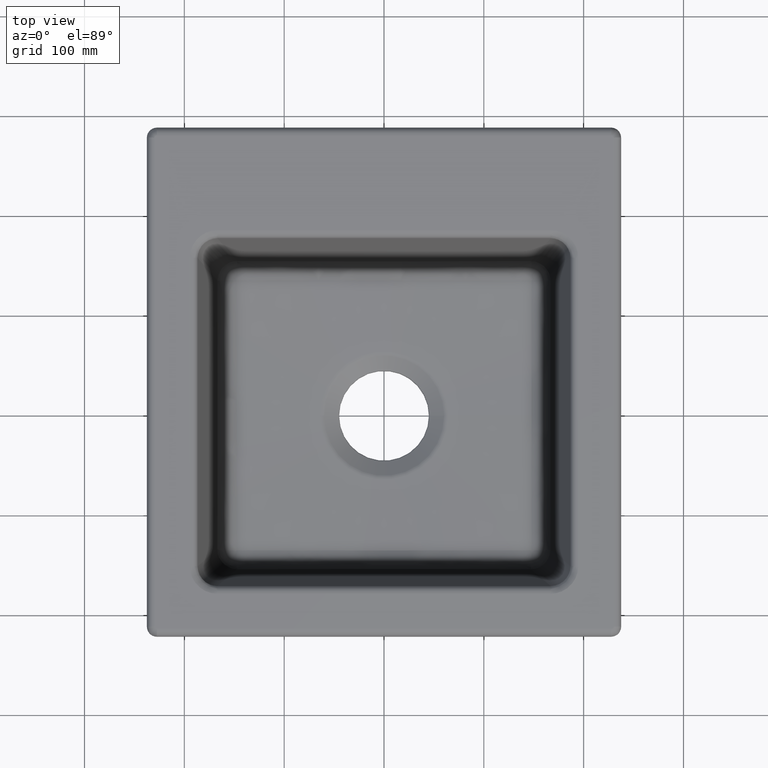
[diagram: clean part render]
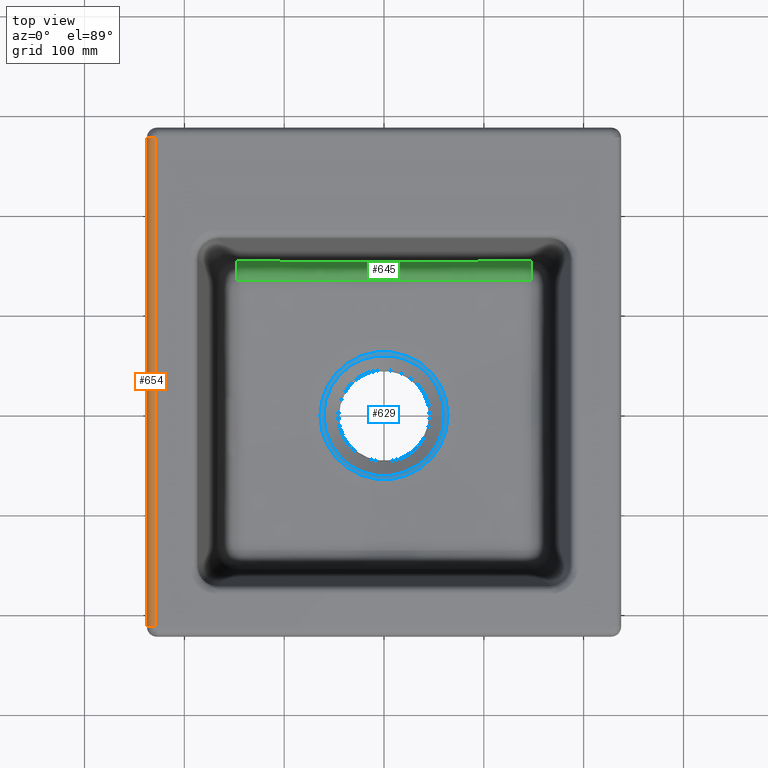
[diagram: same view with three faces highlighted in distinct colors, each labeled with its STEP entity id]
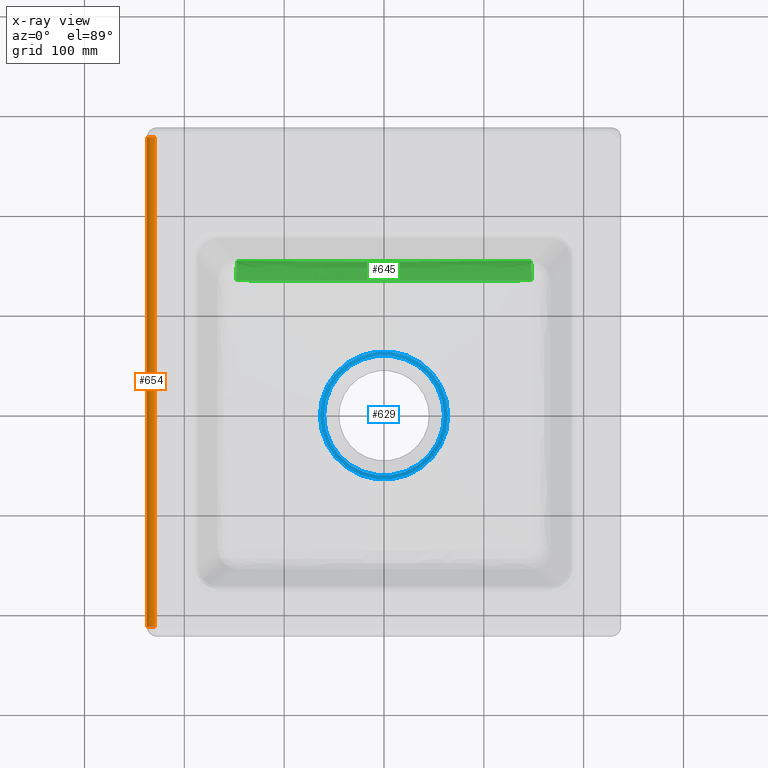
[diagram: x-ray of the same camera — body ghosted, the three highlighted faces saturated]
A machine part, top view with three faces highlighted in distinct colors.
The next image is the same camera in x-ray (body ghosted, the three faces saturated) — at least one of them is partly hidden behind the body in this view.
Their STEP definitions:

[orange] entity #654 — the highlighted cylindrical surface (edge-blend (fillet) strip) has radius 8 mm, axis along (0, 1, 0).
#189=CYLINDRICAL_SURFACE('',#3599,8.);
#276=FACE_OUTER_BOUND('',#993,.T.);
#654=ADVANCED_FACE('',(#276),#189,.T.);
#993=EDGE_LOOP('',(#1566,#1567,#1568,#1569));
#1235=CIRCLE('',#3597,8.);
#1236=CIRCLE('',#3598,7.99999999999898);
#1566=ORIENTED_EDGE('',*,*,#2839,.T.);
#1567=ORIENTED_EDGE('',*,*,#2874,.F.);
#1568=ORIENTED_EDGE('',*,*,#2875,.F.);
#1569=ORIENTED_EDGE('',*,*,#2872,.T.);
#2528=VERTEX_POINT('',#5383);
#2530=VERTEX_POINT('',#5391);
#2548=VERTEX_POINT('',#5987);
#2549=VERTEX_POINT('',#6076);
#2839=EDGE_CURVE('',#2528,#2530,#3287,.T.);
#2872=EDGE_CURVE('',#2548,#2528,#1235,.T.);
#2874=EDGE_CURVE('',#2549,#2530,#1236,.T.);
#2875=EDGE_CURVE('',#2548,#2549,#3293,.T.);
#3287=LINE('',#5392,#3422);
#3293=LINE('',#6077,#3428);
#3422=VECTOR('',#4019,1.);
#3428=VECTOR('',#4073,1.);
#3597=AXIS2_PLACEMENT_3D('',#5986,#4069,#4070);
#3598=AXIS2_PLACEMENT_3D('',#6075,#4071,#4072);
#3599=AXIS2_PLACEMENT_3D('',#6078,#4074,#4075);
#4019=DIRECTION('',(0.,-1.,0.));
#4069=DIRECTION('',(0.,-1.,0.));
#4070=DIRECTION('',(0.,0.,1.));
#4071=DIRECTION('',(-1.01446199031212E-14,-1.,1.30966479794646E-14));
#4072=DIRECTION('',(0.,-1.38777878078162E-14,-1.));
#4073=DIRECTION('',(0.,-1.,0.));
#4074=DIRECTION('',(0.,1.,0.));
#4075=DIRECTION('',(0.,0.,-1.));
#5383=CARTESIAN_POINT('',(-237.5,275.,-8.00000000000001));
#5391=CARTESIAN_POINT('',(-237.5,-215.,-8.00000000000001));
#5392=CARTESIAN_POINT('',(-237.5,30.,-8.00000000000001));
#5986=CARTESIAN_POINT('',(-229.5,275.,-8.00000000000001));
#5987=CARTESIAN_POINT('',(-229.5,275.,0.));
#6075=CARTESIAN_POINT('',(-229.5,-215.,-7.99999999999913));
#6076=CARTESIAN_POINT('',(-229.5,-215.,-1.73472347597681E-15));
#6077=CARTESIAN_POINT('',(-229.5,30.,0.));
#6078=CARTESIAN_POINT('',(-229.5,-215.,-8.00000000000001));

[blue] entity #629 — the highlighted toroidal blend (fillet) surface has major radius 64.5436 mm and minor (blend) radius 8 mm.
#61=TOROIDAL_SURFACE('',#3563,64.543621671717,8.);
#629=ADVANCED_FACE('',(#929,#930),#61,.T.);
#929=FACE_BOUND('',#964,.T.);
#930=FACE_BOUND('',#965,.T.);
#964=EDGE_LOOP('',(#1470,#1471));
#965=EDGE_LOOP('',(#1472,#1473));
#1209=CIRCLE('',#3556,60.1976114464591);
#1210=CIRCLE('',#3557,60.1976114464592);
#1213=CIRCLE('',#3561,64.1441207361659);
#1214=CIRCLE('',#3562,64.144120736166);
#1470=ORIENTED_EDGE('',*,*,#2811,.T.);
#1471=ORIENTED_EDGE('',*,*,#2810,.T.);
#1472=ORIENTED_EDGE('',*,*,#2814,.F.);
#1473=ORIENTED_EDGE('',*,*,#2815,.F.);
#2506=VERTEX_POINT('',#5141);
#2507=VERTEX_POINT('',#5142);
#2510=VERTEX_POINT('',#5150);
#2511=VERTEX_POINT('',#5151);
#2810=EDGE_CURVE('',#2506,#2507,#1209,.T.);
#2811=EDGE_CURVE('',#2507,#2506,#1210,.T.);
#2814=EDGE_CURVE('',#2510,#2511,#1213,.T.);
#2815=EDGE_CURVE('',#2511,#2510,#1214,.T.);
#3556=AXIS2_PLACEMENT_3D('',#5140,#3969,#3970);
#3557=AXIS2_PLACEMENT_3D('',#5143,#3971,#3972);
#3561=AXIS2_PLACEMENT_3D('',#5149,#3979,#3980);
#3562=AXIS2_PLACEMENT_3D('',#5152,#3981,#3982);
#3563=AXIS2_PLACEMENT_3D('',#5153,#3983,#3984);
#3969=DIRECTION('',(-9.81740284581459E-16,-4.90870142290729E-16,-1.));
#3970=DIRECTION('',(1.,0.,-9.22148734765507E-16));
#3971=DIRECTION('',(-9.81740284581459E-16,-4.90870142290729E-16,-1.));
#3972=DIRECTION('',(1.,0.,-9.22148734765505E-16));
#3979=DIRECTION('',(-4.32706463150249E-16,4.32706463150249E-16,-1.));
#3980=DIRECTION('',(0.,1.,4.32706463150249E-16));
#3981=DIRECTION('',(-4.32706463150254E-16,4.32706463150257E-16,-1.));
#3982=DIRECTION('',(0.,1.,4.32706463150248E-16));
#3983=DIRECTION('',(9.81740284581459E-16,4.90870142290729E-16,1.));
#3984=DIRECTION('',(-1.,0.,1.1478159613218E-15));
#5140=CARTESIAN_POINT('',(6.59391876006938E-15,-7.9969767466852E-14,-206.166251416998));
#5141=CARTESIAN_POINT('',(-60.1976114464591,-6.52256050320076E-14,-206.166251416998));
#5142=CARTESIAN_POINT('',(60.1976114464591,-6.06087389821551E-14,-206.166251416998));
#5143=CARTESIAN_POINT('',(6.59391876006946E-15,-7.9969767466852E-14,-206.166251416998));
#5149=CARTESIAN_POINT('',(-6.00500847866905E-30,1.37371219424636E-14,-204.892793963192));
#5150=CARTESIAN_POINT('',(-64.1441207361658,2.12267857830344E-14,-204.892793963192));
#5151=CARTESIAN_POINT('',(64.1441207361658,3.94163205002783E-14,-204.892793963192));
#5152=CARTESIAN_POINT('',(3.85155811348669E-14,4.15477459141055E-13,-204.892793963192));
#5153=CARTESIAN_POINT('',(0.,-8.32667268468867E-14,-212.882812674215));

[green] entity #645 — the highlighted face is a freeform B-spline surface patch.
#85=(
BOUNDED_SURFACE()
B_SPLINE_SURFACE(3,2,((#5620,#5621,#5622),(#5623,#5624,#5625),(#5626,#5627,
#5628),(#5629,#5630,#5631),(#5632,#5633,#5634),(#5635,#5636,#5637)),
 .UNSPECIFIED.,.F.,.F.,.F.)
B_SPLINE_SURFACE_WITH_KNOTS((4,2,4),(3,3),(0.,0.5,1.),(0.,1.),
 .UNSPECIFIED.)
GEOMETRIC_REPRESENTATION_ITEM()
RATIONAL_B_SPLINE_SURFACE(((1.,0.757151744441385,1.),(1.,0.75894754931409,
1.),(1.,0.762457015474614,1.),(1.,0.762455168656134,1.),(1.,0.758946727016128,
1.),(1.,0.757151744441386,1.)))
REPRESENTATION_ITEM('')
SURFACE()
);
#267=FACE_OUTER_BOUND('',#984,.T.);
#494=B_SPLINE_CURVE_WITH_KNOTS('',3,(#5157,#5158,#5159,#5160,#5161,#5162,
#5163,#5164,#5165,#5166,#5167,#5168,#5169,#5170,#5171,#5172,#5173,#5174,
#5175,#5176,#5177,#5178,#5179,#5180,#5181,#5182,#5183,#5184,#5185,#5186,
#5187,#5188,#5189,#5190,#5191,#5192,#5193,#5194,#5195,#5196,#5197,#5198,
#5199,#5200,#5201,#5202,#5203,#5204),.UNSPECIFIED.,.F.,.F.,(4,2,2,2,2,1,
2,2,2,2,2,2,2,2,2,2,2,2,2,2,1,2,2,2,4),(0.,0.125000000000004,0.187500000000007,
0.218750000000008,0.234375000000008,0.242187500000008,0.246093750000009,
0.250000000000009,0.312500000000008,0.343750000000008,0.359375000000008,
0.375000000000008,0.500000000000007,0.562500000000007,0.593750000000007,
0.609375000000007,0.625000000000007,0.687500000000007,0.718750000000007,
0.734375000000007,0.742187500000006,0.746093750000006,0.750000000000006,
0.875000000000003,1.),.UNSPECIFIED.);
#502=B_SPLINE_CURVE_WITH_KNOTS('',3,(#5612,#5613,#5614,#5615,#5616,#5617),
 .UNSPECIFIED.,.F.,.F.,(4,2,4),(0.,0.5,1.),.UNSPECIFIED.);
#645=ADVANCED_FACE('',(#267),#85,.T.);
#984=EDGE_LOOP('',(#1532,#1533,#1534,#1535));
#1226=CIRCLE('',#3586,19.99);
#1227=CIRCLE('',#3587,19.99);
#1532=ORIENTED_EDGE('',*,*,#2856,.T.);
#1533=ORIENTED_EDGE('',*,*,#2857,.F.);
#1534=ORIENTED_EDGE('',*,*,#2817,.F.);
#1535=ORIENTED_EDGE('',*,*,#2855,.T.);
#2513=VERTEX_POINT('',#5205);
#2514=VERTEX_POINT('',#5206);
#2539=VERTEX_POINT('',#5544);
#2540=VERTEX_POINT('',#5618);
#2817=EDGE_CURVE('',#2513,#2514,#494,.T.);
#2855=EDGE_CURVE('',#2513,#2539,#1226,.T.);
#2856=EDGE_CURVE('',#2539,#2540,#502,.T.);
#2857=EDGE_CURVE('',#2514,#2540,#1227,.T.);
#3586=AXIS2_PLACEMENT_3D('',#5545,#4045,#4046);
#3587=AXIS2_PLACEMENT_3D('',#5619,#4047,#4048);
#4045=DIRECTION('',(0.999306238617373,0.00421602791559831,0.0370036021086254));
#4046=DIRECTION('',(0.0370039309805143,0.,-0.999315120015699));
#4047=DIRECTION('',(0.999306238617373,-0.00421602791559847,-0.0370036021086268));
#4048=DIRECTION('',(-0.0370039309805156,0.,-0.999315120015699));
#5157=CARTESIAN_POINT('',(147.813322408069,135.260774200895,-198.081984313404));
#5158=CARTESIAN_POINT('',(134.283123572174,135.237342578409,-198.581862004965));
#5159=CARTESIAN_POINT('',(121.43825064969,135.240766439261,-199.024409404381));
#5160=CARTESIAN_POINT('',(103.058961261054,135.227023923054,-199.602235065289));
#5161=CARTESIAN_POINT('',(97.0791886978778,135.220993094899,-199.780511045888));
#5162=CARTESIAN_POINT('',(88.2970484461973,135.212983439906,-200.026426157233));
#5163=CARTESIAN_POINT('',(85.4008018288385,135.210534248517,-200.104814717756));
#5164=CARTESIAN_POINT('',(81.0979235870714,135.207824996629,-200.217022843651));
#5165=CARTESIAN_POINT('',(79.6705377399262,135.207083192648,-200.253529766468));
#5166=CARTESIAN_POINT('',(77.5390910945031,135.206289196385,-200.306946471972));
#5167=CARTESIAN_POINT('',(76.4757749854655,135.205971792813,-200.333318905043));
#5168=CARTESIAN_POINT('',(75.4159256973017,135.205787072815,-200.359187458593));
#5169=CARTESIAN_POINT('',(74.7101133894607,135.205694782569,-200.376321187733));
#5170=CARTESIAN_POINT('',(74.4024470896904,135.205665932387,-200.383754969376));
#5171=CARTESIAN_POINT('',(67.6530482982274,135.205385769015,-200.545798759545));
#5172=CARTESIAN_POINT('',(61.4327358593441,135.202987890439,-200.680182014994));
#5173=CARTESIAN_POINT('',(52.2159151123615,135.204002310276,-200.854564077575));
#5174=CARTESIAN_POINT('',(49.1623484624086,135.204996928247,-200.908159295003));
#5175=CARTESIAN_POINT('',(44.5974457560216,135.206928112357,-200.981753915996));
#5176=CARTESIAN_POINT('',(43.0783720852028,135.207631686078,-201.005152422136));
#5177=CARTESIAN_POINT('',(40.0430819644259,135.208884282391,-201.049683366032));
#5178=CARTESIAN_POINT('',(38.5813386716789,135.209424420776,-201.070097165269));
#5179=CARTESIAN_POINT('',(24.4473424618983,135.21188087769,-201.256559544044));
#5180=CARTESIAN_POINT('',(12.3856478955351,135.214214184403,-201.33938560004));
#5181=CARTESIAN_POINT('',(-6.22433946636451,135.214086947529,-201.339247375565));
#5182=CARTESIAN_POINT('',(-12.3381244108614,135.204823895542,-201.318477177235));
#5183=CARTESIAN_POINT('',(-21.5410506059442,135.203791872405,-201.25623569448));
#5184=CARTESIAN_POINT('',(-24.6140075968227,135.204994407956,-201.230307502685));
#5185=CARTESIAN_POINT('',(-29.2511650007848,135.207454590204,-201.183643668678));
#5186=CARTESIAN_POINT('',(-30.80149417704,135.208351375594,-201.166793799623));
#5187=CARTESIAN_POINT('',(-33.914522478946,135.20964659372,-201.130503546076));
#5188=CARTESIAN_POINT('',(-35.5323476192951,135.210034262277,-201.110335282104));
#5189=CARTESIAN_POINT('',(-43.1087406542085,135.208616837621,-201.010296468436));
#5190=CARTESIAN_POINT('',(-49.1752367210437,135.204375379048,-200.912144926814));
#5191=CARTESIAN_POINT('',(-58.3890080306355,135.203445784132,-200.737736878349));
#5192=CARTESIAN_POINT('',(-61.4790584966782,135.203774358975,-200.675070739523));
#5193=CARTESIAN_POINT('',(-66.1535648934105,135.204618290555,-200.574276347275));
#5194=CARTESIAN_POINT('',(-67.7182910477365,135.204948015692,-200.539545685857));
#5195=CARTESIAN_POINT('',(-70.0764910404433,135.205363961607,-200.48575089773));
#5196=CARTESIAN_POINT('',(-71.2583673659328,135.205551612933,-200.458428804665));
#5197=CARTESIAN_POINT('',(-72.4446349193288,135.205675136031,-200.4304696631));
#5198=CARTESIAN_POINT('',(-73.2364801305689,135.205739185968,-200.411688669057));
#5199=CARTESIAN_POINT('',(-73.6777990965048,135.20576339813,-200.401149242898));
#5200=CARTESIAN_POINT('',(-85.2950748251746,135.206105593909,-200.122169969171));
#5201=CARTESIAN_POINT('',(-96.949187446314,135.222442677379,-199.794347275893));
#5202=CARTESIAN_POINT('',(-121.446858413706,135.240894690705,-199.024107215465));
#5203=CARTESIAN_POINT('',(-134.287544396979,135.23759811312,-198.581689848315));
#5204=CARTESIAN_POINT('',(-147.813320915607,135.261047475755,-198.081975144229));
#5205=CARTESIAN_POINT('',(147.819287731931,135.256326451982,-198.081914390282));
#5206=CARTESIAN_POINT('',(-147.819777511723,135.256509272299,-198.081890152258));
#5544=CARTESIAN_POINT('',(147.076843219249,154.448280332774,-180.380128509212));
#5545=CARTESIAN_POINT('',(147.076873903425,134.586809621982,-178.116926954371));
#5612=CARTESIAN_POINT('',(147.076873903426,154.448311016957,-180.379859197591));
#5613=CARTESIAN_POINT('',(98.0550966664609,154.241490351463,-182.195100881706));
#5614=CARTESIAN_POINT('',(49.0074365485671,154.077142997464,-183.637559095153));
#5615=CARTESIAN_POINT('',(-49.0491470115571,154.077230294426,-183.636792899554));
#5616=CARTESIAN_POINT('',(-98.064662546287,154.241530709478,-182.194746663953));
#5617=CARTESIAN_POINT('',(-147.076873903426,154.448311016957,-180.379859197591));
#5618=CARTESIAN_POINT('',(-147.076846813648,154.448283927125,-180.380096961994));
#5619=CARTESIAN_POINT('',(-147.076873903426,134.586809621982,-178.116926954371));
#5620=CARTESIAN_POINT('',(147.076873903426,154.448311016957,-180.379859197592));
#5621=CARTESIAN_POINT('',(147.719186909958,152.497301670162,-197.503648466612));
#5622=CARTESIAN_POINT('',(147.813322716539,135.260717718995,-198.081986208539));
#5623=CARTESIAN_POINT('',(98.0554663040054,154.241491911507,-182.195087189378));
#5624=CARTESIAN_POINT('',(98.7388949969177,152.302697054997,-199.21167120225));
#5625=CARTESIAN_POINT('',(98.7116143029967,135.1756379731,-199.896067015993));
#5626=CARTESIAN_POINT('',(49.0074365486638,154.07714299735,-183.637559096158));
#5627=CARTESIAN_POINT('',(49.3208782974796,152.156765449899,-200.49249652859));
#5628=CARTESIAN_POINT('',(49.3719380363438,135.213951214986,-201.339686106134));
#5629=CARTESIAN_POINT('',(-49.049147011654,154.077230294541,-183.636792898549));
#5630=CARTESIAN_POINT('',(-49.3629750989459,152.156842191331,-200.491822946093));
#5631=CARTESIAN_POINT('',(-49.4139587282962,135.213925188268,-201.338919910468));
#5632=CARTESIAN_POINT('',(-98.0646143205223,154.241530505629,-182.194748453118));
#5633=CARTESIAN_POINT('',(-98.7479210047461,152.302732912339,-199.211356456099));
#5634=CARTESIAN_POINT('',(-98.7207047575649,135.175653717985,-199.895731165996));
#5635=CARTESIAN_POINT('',(-147.076873903426,154.448311016957,-180.379859197591));
#5636=CARTESIAN_POINT('',(-147.719186909957,152.497301670162,-197.503648466612));
#5637=CARTESIAN_POINT('',(-147.813322716539,135.260717718995,-198.081986208539));